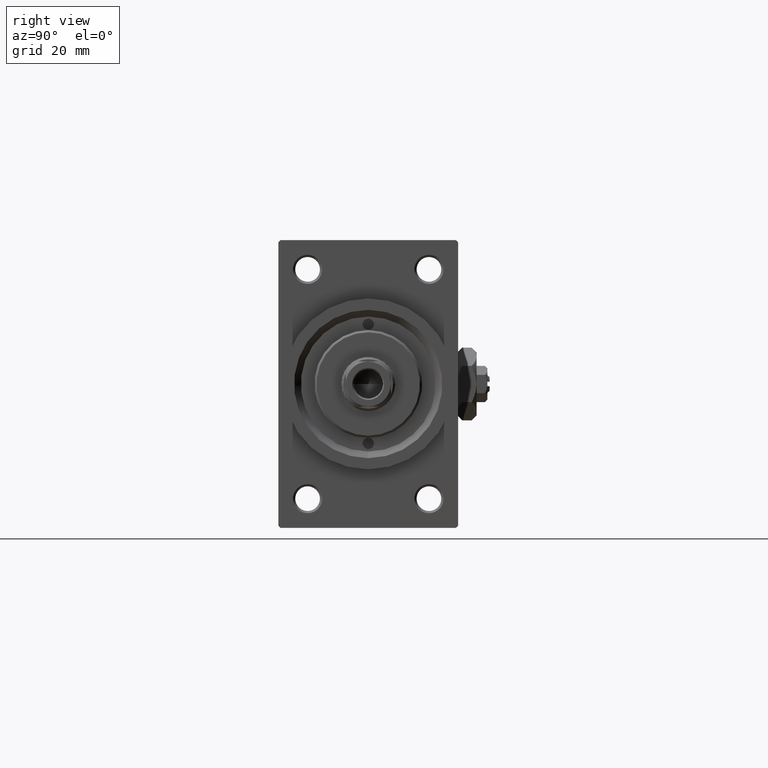
[diagram: clean part render]
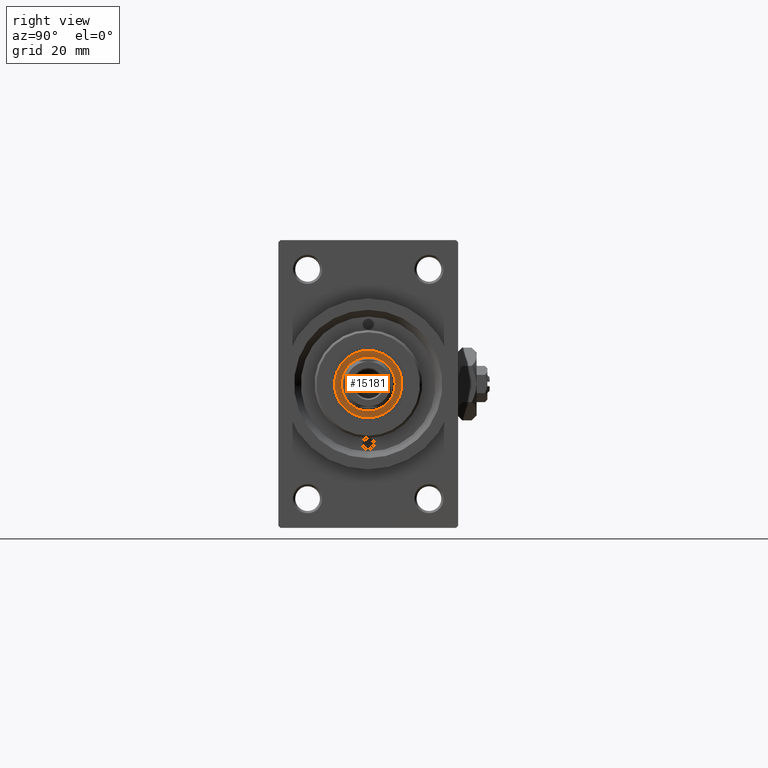
[diagram: same view with one face highlighted and labeled with its STEP entity id]
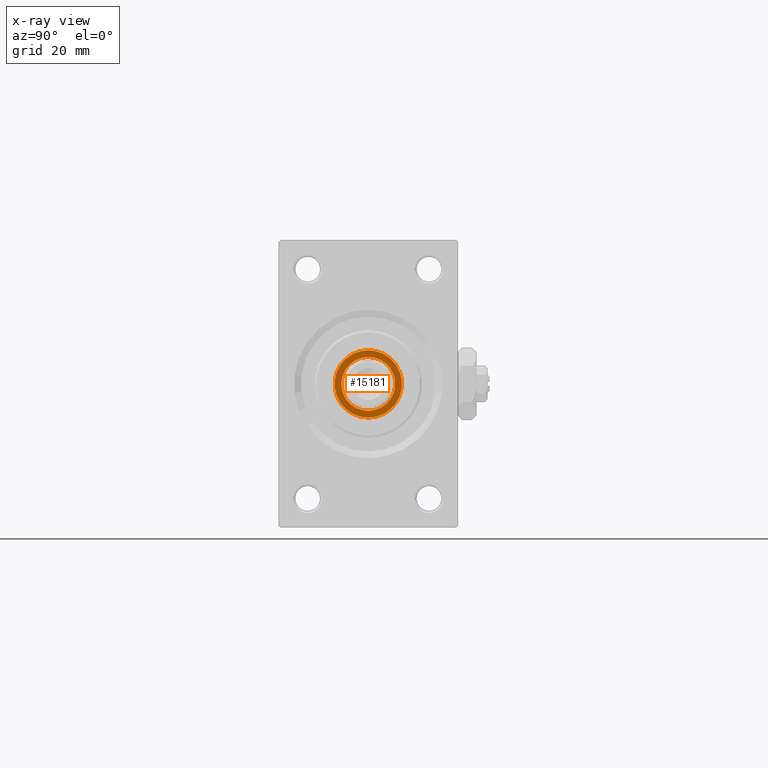
[diagram: x-ray of the same camera — body ghosted, the highlighted face saturated]
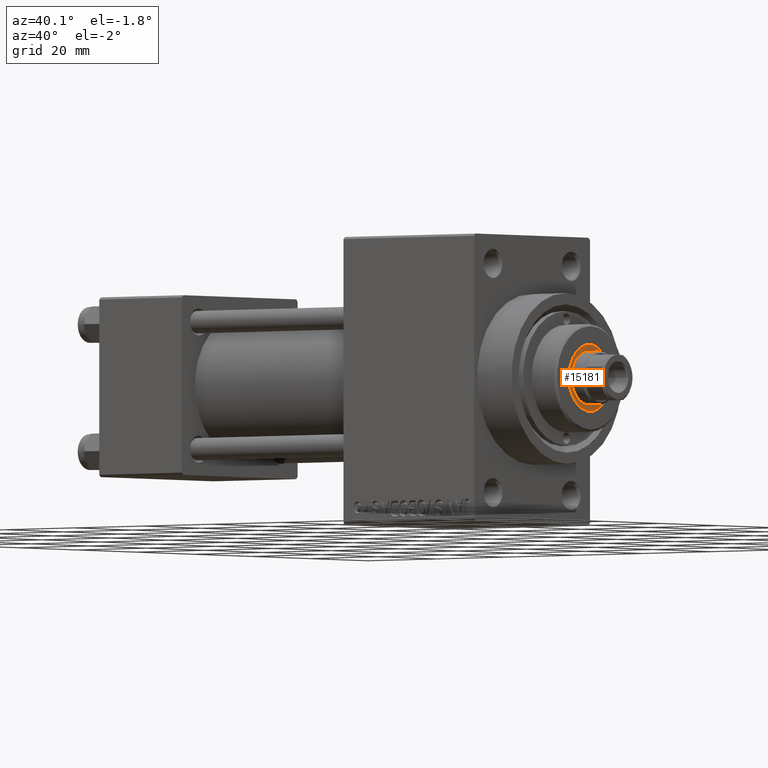
[diagram: same view with one face highlighted and labeled with its STEP entity id]
A machine part, right view. The second image highlights one B-rep face of the part: STEP entity #15181.
The next image is the same camera in x-ray: the body ghosted, the highlighted face saturated — about 0% of this face is hidden behind the body in this view.
A second angle (auxiliary view) of the same face is appended — the face is thin or edge-on in the first view.
In plain terms, the highlighted planar face has unit normal (1, -0, -0).
Its self-contained STEP definition (entity closure, byte-faithful):
#899 = CARTESIAN_POINT ( 'NONE',  ( 7.500000000000000888, 0.000000000000000000, 49.75999999999999801 ) ) ;
#1644 = AXIS2_PLACEMENT_3D ( 'NONE', #30279, #29321, #36750 ) ;
#2431 = CIRCLE ( 'NONE', #1644, 6.000000000000000888 ) ;
#5319 = DIRECTION ( 'NONE',  ( -0.000000000000000000, -0.000000000000000000, -1.000000000000000000 ) ) ;
#6258 = AXIS2_PLACEMENT_3D ( 'NONE', #43101, #42853, #39380 ) ;
#7404 = ORIENTED_EDGE ( 'NONE', *, *, #8582, .T. ) ;
#7422 = ORIENTED_EDGE ( 'NONE', *, *, #22848, .T. ) ;
#8358 = CIRCLE ( 'NONE', #24958, 7.500000000000000888 ) ;
#8582 = EDGE_CURVE ( 'NONE', #33302, #47707, #8358, .T. ) ;
#9105 = CIRCLE ( 'NONE', #12290, 6.000000000000000888 ) ;
#11841 = AXIS2_PLACEMENT_3D ( 'NONE', #30601, #45230, #19184 ) ;
#12290 = AXIS2_PLACEMENT_3D ( 'NONE', #35542, #5319, #20419 ) ;
#13549 = CARTESIAN_POINT ( 'NONE',  ( -7.500000000000000888, 9.184850993605149917E-16, 49.75999999999999801 ) ) ;
#14866 = VERTEX_POINT ( 'NONE', #45960 ) ;
#15181 = ADVANCED_FACE ( 'NONE', ( #19556, #26974 ), #23512, .T. ) ;
#15642 = EDGE_LOOP ( 'NONE', ( #35386, #7404 ) ) ;
#16436 = EDGE_LOOP ( 'NONE', ( #7422, #42825 ) ) ;
#19184 = DIRECTION ( 'NONE',  ( 1.000000000000000000, 0.000000000000000000, 0.000000000000000000 ) ) ;
#19556 = FACE_OUTER_BOUND ( 'NONE', #15642, .T. ) ;
#20419 = DIRECTION ( 'NONE',  ( 1.000000000000000000, 0.000000000000000000, 0.000000000000000000 ) ) ;
#20914 = EDGE_CURVE ( 'NONE', #47707, #33302, #34778, .T. ) ;
#22848 = EDGE_CURVE ( 'NONE', #25576, #14866, #2431, .T. ) ;
#23512 = PLANE ( 'NONE',  #6258 ) ;
#24958 = AXIS2_PLACEMENT_3D ( 'NONE', #26061, #45156, #41195 ) ;
#25576 = VERTEX_POINT ( 'NONE', #30084 ) ;
#26061 = CARTESIAN_POINT ( 'NONE',  ( 0.000000000000000000, 0.000000000000000000, 49.75999999999999801 ) ) ;
#26974 = FACE_BOUND ( 'NONE', #16436, .T. ) ;
#29321 = DIRECTION ( 'NONE',  ( -0.000000000000000000, -0.000000000000000000, -1.000000000000000000 ) ) ;
#30084 = CARTESIAN_POINT ( 'NONE',  ( 6.000000000000000888, 0.000000000000000000, 49.75999999999999801 ) ) ;
#30279 = CARTESIAN_POINT ( 'NONE',  ( 0.000000000000000000, 0.000000000000000000, 49.75999999999999801 ) ) ;
#30601 = CARTESIAN_POINT ( 'NONE',  ( 0.000000000000000000, 0.000000000000000000, 49.75999999999999801 ) ) ;
#33302 = VERTEX_POINT ( 'NONE', #13549 ) ;
#34778 = CIRCLE ( 'NONE', #11841, 7.500000000000000888 ) ;
#35386 = ORIENTED_EDGE ( 'NONE', *, *, #20914, .T. ) ;
#35542 = CARTESIAN_POINT ( 'NONE',  ( 0.000000000000000000, 0.000000000000000000, 49.75999999999999801 ) ) ;
#36611 = EDGE_CURVE ( 'NONE', #14866, #25576, #9105, .T. ) ;
#36750 = DIRECTION ( 'NONE',  ( 1.000000000000000000, 0.000000000000000000, 0.000000000000000000 ) ) ;
#39380 = DIRECTION ( 'NONE',  ( 1.000000000000000000, 0.000000000000000000, -0.000000000000000000 ) ) ;
#41195 = DIRECTION ( 'NONE',  ( 1.000000000000000000, 0.000000000000000000, 0.000000000000000000 ) ) ;
#42825 = ORIENTED_EDGE ( 'NONE', *, *, #36611, .T. ) ;
#42853 = DIRECTION ( 'NONE',  ( 0.000000000000000000, 0.000000000000000000, 1.000000000000000000 ) ) ;
#43101 = CARTESIAN_POINT ( 'NONE',  ( 0.000000000000000000, 0.000000000000000000, 49.75999999999999801 ) ) ;
#45156 = DIRECTION ( 'NONE',  ( 0.000000000000000000, 0.000000000000000000, 1.000000000000000000 ) ) ;
#45230 = DIRECTION ( 'NONE',  ( 0.000000000000000000, 0.000000000000000000, 1.000000000000000000 ) ) ;
#45960 = CARTESIAN_POINT ( 'NONE',  ( -6.000000000000000888, 7.347880794884120722E-16, 49.75999999999999801 ) ) ;
#47707 = VERTEX_POINT ( 'NONE', #899 ) ;